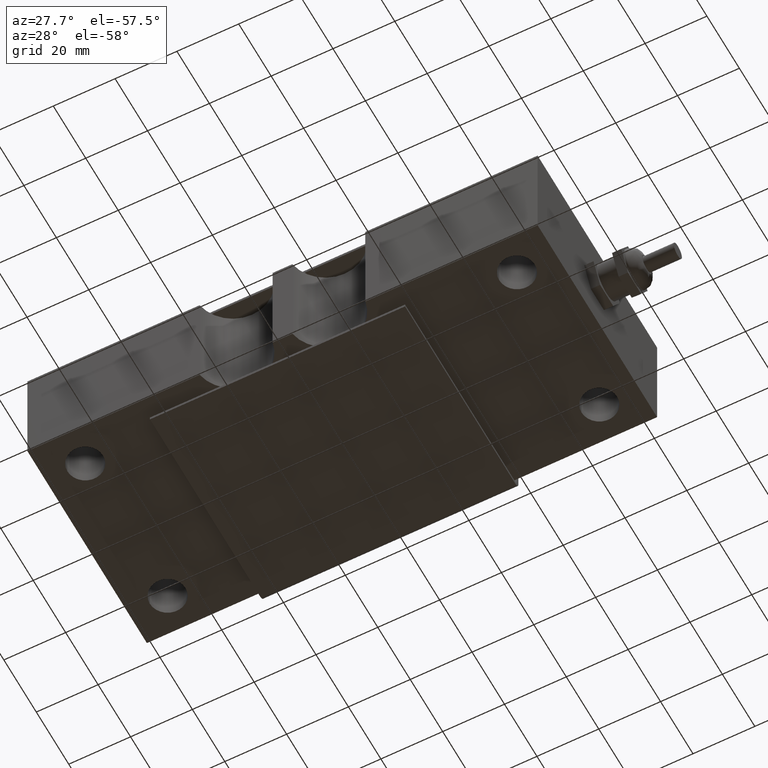
[diagram: clean part render]
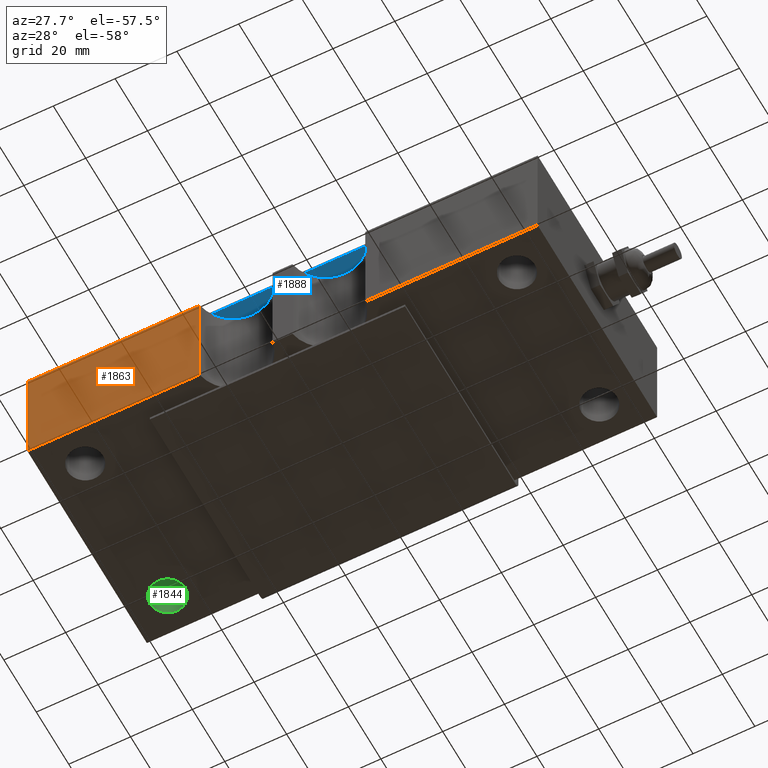
[diagram: same view with three faces highlighted in distinct colors, each labeled with its STEP entity id]
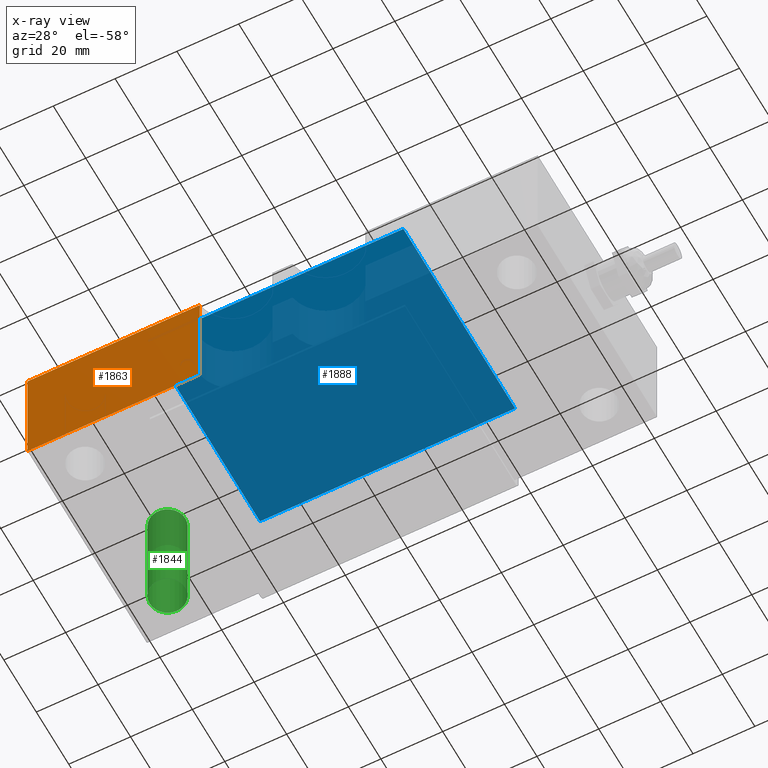
[diagram: x-ray of the same camera — body ghosted, the three highlighted faces saturated]
A machine part, auxiliary view with three faces highlighted in distinct colors.
The next image is the same camera in x-ray (body ghosted, the three faces saturated) — at least one of them is partly hidden behind the body in this view.
Their STEP definitions:

[orange] entity #1863 — the highlighted planar face has unit normal (0, -1, 0).
#130=PLANE('',#2043);
#239=FACE_OUTER_BOUND('',#365,.T.);
#365=EDGE_LOOP('',(#1596,#1597,#1598,#1599));
#479=LINE('',#4216,#635);
#511=LINE('',#4304,#667);
#514=LINE('',#4309,#670);
#516=LINE('',#4312,#672);
#635=VECTOR('',#2380,0.393700787401575);
#667=VECTOR('',#2466,0.393700787401575);
#670=VECTOR('',#2471,0.393700787401575);
#672=VECTOR('',#2475,0.393700787401575);
#881=VERTEX_POINT('',#4210);
#883=VERTEX_POINT('',#4214);
#912=VERTEX_POINT('',#4303);
#913=VERTEX_POINT('',#4308);
#1104=EDGE_CURVE('',#881,#883,#479,.T.);
#1148=EDGE_CURVE('',#912,#881,#511,.T.);
#1151=EDGE_CURVE('',#912,#913,#514,.T.);
#1153=EDGE_CURVE('',#913,#883,#516,.T.);
#1596=ORIENTED_EDGE('',*,*,#1104,.T.);
#1597=ORIENTED_EDGE('',*,*,#1153,.F.);
#1598=ORIENTED_EDGE('',*,*,#1151,.F.);
#1599=ORIENTED_EDGE('',*,*,#1148,.T.);
#1863=ADVANCED_FACE('',(#239),#130,.T.);
#2043=AXIS2_PLACEMENT_3D('',#4311,#2473,#2474);
#2380=DIRECTION('',(0.,0.,1.));
#2466=DIRECTION('',(1.,0.,0.));
#2471=DIRECTION('',(0.,0.,1.));
#2473=DIRECTION('center_axis',(0.,-1.,0.));
#2474=DIRECTION('ref_axis',(0.,0.,-1.));
#2475=DIRECTION('',(1.,0.,0.));
#4210=CARTESIAN_POINT('',(-1.05520334864629,-1.45,-0.729999999999999));
#4214=CARTESIAN_POINT('',(-1.05520334864629,-1.45,0.729999999999999));
#4216=CARTESIAN_POINT('',(-1.05520334864629,-1.45,0.));
#4303=CARTESIAN_POINT('',(-3.25,-1.45,-0.73));
#4304=CARTESIAN_POINT('',(0.,-1.45,-0.73));
#4308=CARTESIAN_POINT('',(-3.25,-1.45,0.729999999999999));
#4309=CARTESIAN_POINT('',(-3.25,-1.45,-0.73));
#4311=CARTESIAN_POINT('Origin',(0.,-1.45,0.729999999999999));
#4312=CARTESIAN_POINT('',(0.,-1.45,0.729999999999999));

[blue] entity #1888 — the highlighted planar face has unit normal (0, 0, 1).
#151=PLANE('',#2076);
#264=FACE_OUTER_BOUND('',#398,.T.);
#398=EDGE_LOOP('',(#1720,#1721,#1722,#1723));
#546=LINE('',#4389,#702);
#549=LINE('',#4396,#705);
#552=LINE('',#4403,#708);
#554=LINE('',#4406,#710);
#702=VECTOR('',#2559,0.393700787401575);
#705=VECTOR('',#2566,0.393700787401575);
#708=VECTOR('',#2573,0.393700787401575);
#710=VECTOR('',#2577,0.393700787401575);
#932=VERTEX_POINT('',#4379);
#933=VERTEX_POINT('',#4383);
#935=VERTEX_POINT('',#4394);
#937=VERTEX_POINT('',#4402);
#1191=EDGE_CURVE('',#932,#933,#546,.T.);
#1194=EDGE_CURVE('',#935,#933,#549,.T.);
#1197=EDGE_CURVE('',#937,#935,#552,.T.);
#1199=EDGE_CURVE('',#932,#937,#554,.T.);
#1720=ORIENTED_EDGE('',*,*,#1191,.T.);
#1721=ORIENTED_EDGE('',*,*,#1194,.F.);
#1722=ORIENTED_EDGE('',*,*,#1197,.F.);
#1723=ORIENTED_EDGE('',*,*,#1199,.F.);
#1888=ADVANCED_FACE('',(#264),#151,.F.);
#2076=AXIS2_PLACEMENT_3D('',#4407,#2578,#2579);
#2559=DIRECTION('',(1.,0.,0.));
#2566=DIRECTION('',(0.,1.,0.));
#2573=DIRECTION('',(1.,0.,0.));
#2577=DIRECTION('',(0.,-1.,0.));
#2578=DIRECTION('center_axis',(0.,0.,1.));
#2579=DIRECTION('ref_axis',(1.,0.,0.));
#4379=CARTESIAN_POINT('',(-1.80708661417323,1.44625984251969,0.765629921259842));
#4383=CARTESIAN_POINT('',(1.44291338582677,1.44625984251969,0.765629921259842));
#4389=CARTESIAN_POINT('',(-0.994586614173228,1.44625984251969,0.765629921259842));
#4394=CARTESIAN_POINT('',(1.44291338582677,-1.26437007874016,0.765629921259842));
#4396=CARTESIAN_POINT('',(1.44291338582677,-1.26437007874016,0.765629921259842));
#4402=CARTESIAN_POINT('',(-1.80708661417323,-1.26437007874016,0.765629921259842));
#4403=CARTESIAN_POINT('',(-1.80708661417323,-1.26437007874016,0.765629921259842));
#4406=CARTESIAN_POINT('',(-1.80708661417323,1.48562992125984,0.765629921259842));
#4407=CARTESIAN_POINT('Origin',(-0.182086614173228,0.110629921259843,0.765629921259842));

[green] entity #1844 — the highlighted cylindrical surface (bore or boss wall) has radius 5.75 mm, axis along (0, 0, 1).
#220=FACE_OUTER_BOUND('',#338,.T.);
#338=EDGE_LOOP('',(#1494,#1495,#1496,#1497));
#476=LINE('',#4200,#632);
#632=VECTOR('',#2363,0.226377952755906);
#746=CIRCLE('',#2007,0.226377952755906);
#747=CIRCLE('',#2008,0.226377952755906);
#876=VERTEX_POINT('',#4197);
#877=VERTEX_POINT('',#4199);
#1095=EDGE_CURVE('',#876,#876,#746,.T.);
#1096=EDGE_CURVE('',#876,#877,#476,.T.);
#1097=EDGE_CURVE('',#877,#877,#747,.T.);
#1494=ORIENTED_EDGE('',*,*,#1095,.F.);
#1495=ORIENTED_EDGE('',*,*,#1096,.T.);
#1496=ORIENTED_EDGE('',*,*,#1097,.F.);
#1497=ORIENTED_EDGE('',*,*,#1096,.F.);
#1763=CYLINDRICAL_SURFACE('',#2006,0.226377952755906);
#1844=ADVANCED_FACE('',(#220),#1763,.F.);
#2006=AXIS2_PLACEMENT_3D('',#4196,#2359,#2360);
#2007=AXIS2_PLACEMENT_3D('',#4198,#2361,#2362);
#2008=AXIS2_PLACEMENT_3D('',#4201,#2364,#2365);
#2359=DIRECTION('center_axis',(0.,0.,1.));
#2360=DIRECTION('ref_axis',(1.,0.,0.));
#2361=DIRECTION('center_axis',(0.,0.,1.));
#2362=DIRECTION('ref_axis',(1.,0.,0.));
#2363=DIRECTION('',(0.,0.,1.));
#2364=DIRECTION('center_axis',(0.,5.42601532534695E-16,-1.));
#2365=DIRECTION('ref_axis',(1.,0.,0.));
#4196=CARTESIAN_POINT('Origin',(-2.75,0.999212598425198,0.));
#4197=CARTESIAN_POINT('',(-2.97637795275591,0.999212598425198,-0.73));
#4198=CARTESIAN_POINT('Origin',(-2.75,0.999212598425198,-0.73));
#4199=CARTESIAN_POINT('',(-2.97637795275591,0.999212598425198,0.73));
#4200=CARTESIAN_POINT('',(-2.97637795275591,0.999212598425198,0.));
#4201=CARTESIAN_POINT('Origin',(-2.75,0.999212598425198,0.73));